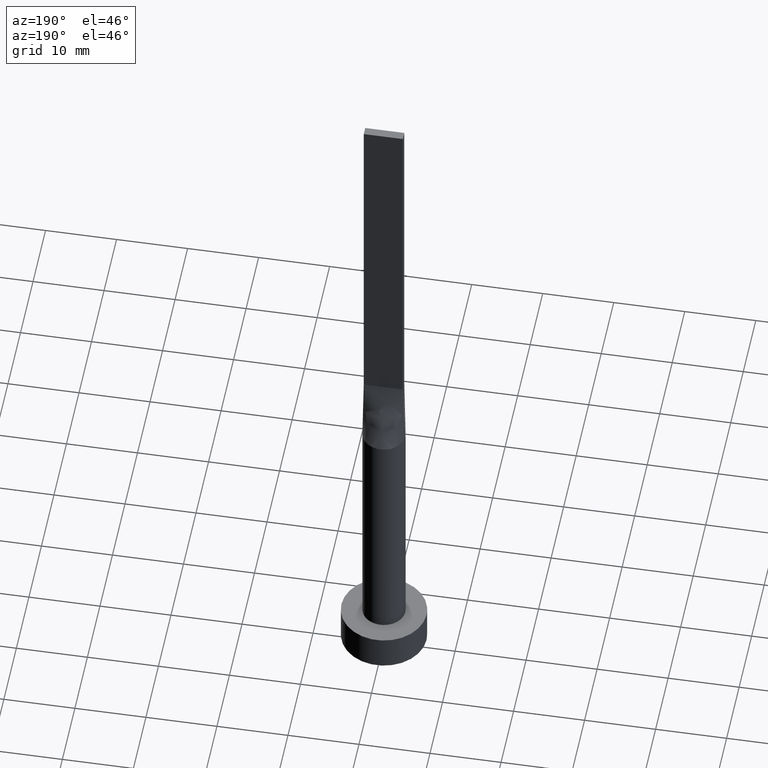
[diagram: clean part render]
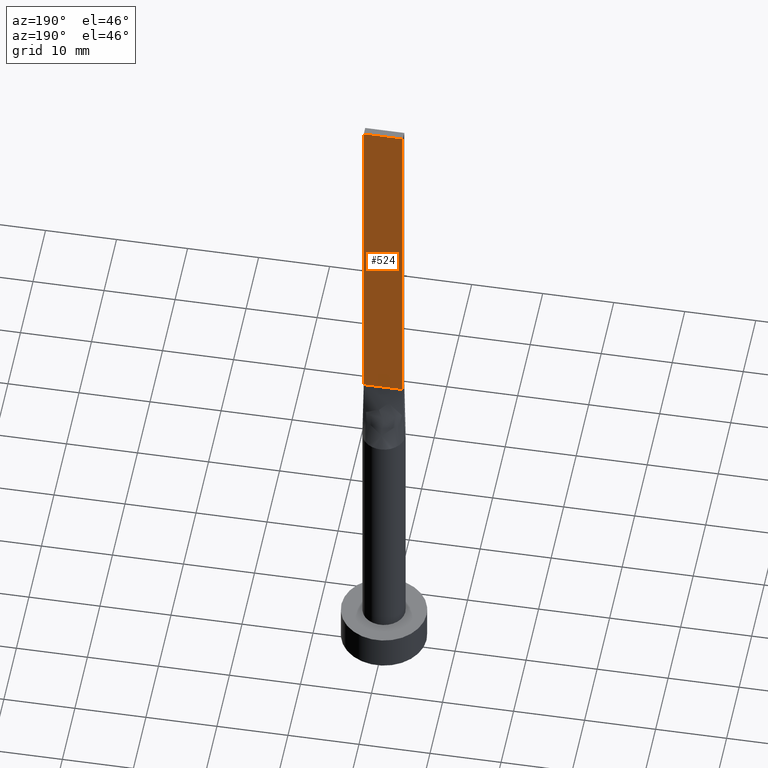
[diagram: same view with one face highlighted and labeled with its STEP entity id]
A machine part, auxiliary view. The second image highlights one B-rep face of the part: STEP entity #524.
In plain terms, the highlighted planar face has unit normal (0, -1, 0).
Its self-contained STEP definition (entity closure, byte-faithful):
#1 = VERTEX_POINT ( 'NONE', #128 ) ;
#7 = EDGE_LOOP ( 'NONE', ( #385, #421, #575, #39 ) ) ;
#39 = ORIENTED_EDGE ( 'NONE', *, *, #177, .T. ) ;
#71 = CARTESIAN_POINT ( 'NONE',  ( -2.750000000000000000, 0.6000000000000001998, 100.0000000000000000 ) ) ;
#78 = EDGE_CURVE ( 'NONE', #1, #215, #474, .T. ) ;
#82 = CARTESIAN_POINT ( 'NONE',  ( 2.750000000000000000, 0.6000000000000001998, 100.0000000000000000 ) ) ;
#100 = VECTOR ( 'NONE', #376, 1000.000000000000000 ) ;
#109 = VECTOR ( 'NONE', #461, 1000.000000000000000 ) ;
#126 = DIRECTION ( 'NONE',  ( 0.000000000000000000, -0.000000000000000000, -1.000000000000000000 ) ) ;
#128 = CARTESIAN_POINT ( 'NONE',  ( -2.750000000000000000, 0.6000000000000001998, 100.0000000000000000 ) ) ;
#130 = CARTESIAN_POINT ( 'NONE',  ( -2.750000000000000000, 0.6000000000000001998, 50.00000000000000000 ) ) ;
#132 = LINE ( 'NONE', #226, #109 ) ;
#138 = CARTESIAN_POINT ( 'NONE',  ( 2.750000000000000000, 0.6000000000000001998, 50.00000000000000000 ) ) ;
#160 = DIRECTION ( 'NONE',  ( 0.000000000000000000, -1.000000000000000000, 0.000000000000000000 ) ) ;
#177 = EDGE_CURVE ( 'NONE', #547, #301, #214, .T. ) ;
#214 = LINE ( 'NONE', #82, #311 ) ;
#215 = VERTEX_POINT ( 'NONE', #130 ) ;
#226 = CARTESIAN_POINT ( 'NONE',  ( 2.750000000000000000, 0.6000000000000001998, 100.0000000000000000 ) ) ;
#263 = FACE_OUTER_BOUND ( 'NONE', #7, .T. ) ;
#294 = LINE ( 'NONE', #473, #100 ) ;
#301 = VERTEX_POINT ( 'NONE', #138 ) ;
#311 = VECTOR ( 'NONE', #443, 1000.000000000000000 ) ;
#341 = PLANE ( 'NONE',  #569 ) ;
#352 = CARTESIAN_POINT ( 'NONE',  ( 2.750000000000000000, 0.6000000000000001998, 100.0000000000000000 ) ) ;
#363 = EDGE_CURVE ( 'NONE', #547, #1, #132, .T. ) ;
#376 = DIRECTION ( 'NONE',  ( -1.000000000000000000, -0.000000000000000000, -0.000000000000000000 ) ) ;
#385 = ORIENTED_EDGE ( 'NONE', *, *, #505, .T. ) ;
#387 = CARTESIAN_POINT ( 'NONE',  ( 2.750000000000000000, 0.6000000000000001998, 100.0000000000000000 ) ) ;
#421 = ORIENTED_EDGE ( 'NONE', *, *, #78, .F. ) ;
#430 = DIRECTION ( 'NONE',  ( -0.000000000000000000, -0.000000000000000000, -1.000000000000000000 ) ) ;
#443 = DIRECTION ( 'NONE',  ( -0.000000000000000000, -0.000000000000000000, -1.000000000000000000 ) ) ;
#461 = DIRECTION ( 'NONE',  ( -1.000000000000000000, 0.000000000000000000, 0.000000000000000000 ) ) ;
#473 = CARTESIAN_POINT ( 'NONE',  ( -2.750000000000000000, 0.6000000000000001998, 50.00000000000000000 ) ) ;
#474 = LINE ( 'NONE', #71, #502 ) ;
#502 = VECTOR ( 'NONE', #430, 1000.000000000000000 ) ;
#505 = EDGE_CURVE ( 'NONE', #301, #215, #294, .T. ) ;
#524 = ADVANCED_FACE ( 'NONE', ( #263 ), #341, .F. ) ;
#547 = VERTEX_POINT ( 'NONE', #352 ) ;
#569 = AXIS2_PLACEMENT_3D ( 'NONE', #387, #160, #126 ) ;
#575 = ORIENTED_EDGE ( 'NONE', *, *, #363, .F. ) ;